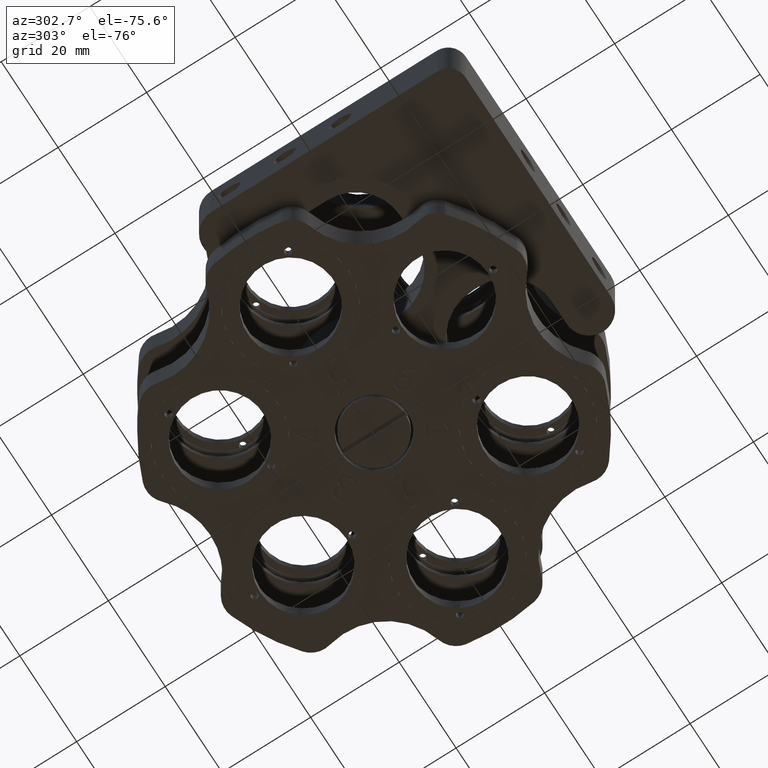
[diagram: clean part render]
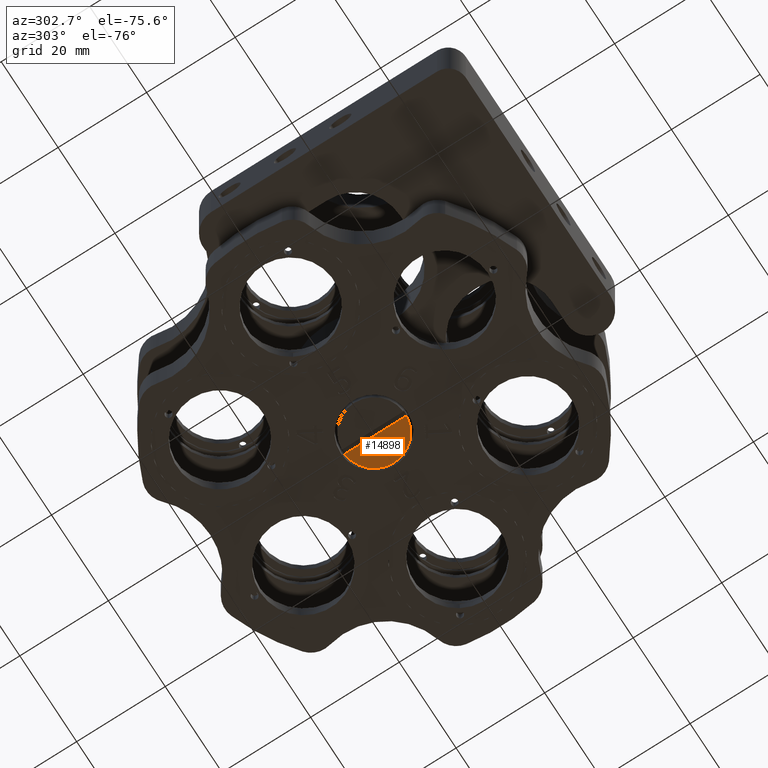
[diagram: same view with one face highlighted and labeled with its STEP entity id]
A machine part, auxiliary view. The second image highlights one B-rep face of the part: STEP entity #14898.
In plain terms, the highlighted planar face has unit normal (-0, 0, 1).
Its self-contained STEP definition (entity closure, byte-faithful):
#1602 = DIRECTION ( 'NONE',  ( -3.366104245613551800E-031, 2.449212707644744700E-016, 1.000000000000000000 ) ) ;
#2147 = DIRECTION ( 'NONE',  ( -1.665334536937734800E-016, 1.000000000000000000, -2.449212707644744700E-016 ) ) ;
#5618 = VERTEX_POINT ( 'NONE', #22318 ) ;
#5788 = CIRCLE ( 'NONE', #22400, 6.999999999999999100 ) ;
#7098 = ORIENTED_EDGE ( 'NONE', *, *, #14294, .F. ) ;
#7623 = PLANE ( 'NONE',  #18294 ) ;
#9433 = VERTEX_POINT ( 'NONE', #21787 ) ;
#9757 = CARTESIAN_POINT ( 'NONE',  ( 1.431146867680866500E-014, 1.621543611191045300E-014, -27.00000000000000000 ) ) ;
#10361 = CARTESIAN_POINT ( 'NONE',  ( 0.5000000000000143200, 1.629870283875734000E-014, -27.00000000000000000 ) ) ;
#11197 = VECTOR ( 'NONE', #2147, 1000.000000000000000 ) ;
#11572 = ORIENTED_EDGE ( 'NONE', *, *, #21740, .F. ) ;
#12790 = LINE ( 'NONE', #10361, #11197 ) ;
#14008 = DIRECTION ( 'NONE',  ( 1.000000000000000000, 1.665334536937736500E-016, 0.0000000000000000000 ) ) ;
#14294 = EDGE_CURVE ( 'NONE', #9433, #23499, #5788, .T. ) ;
#14898 = ADVANCED_FACE ( 'NONE', ( #21045 ), #7623, .F. ) ;
#17753 = EDGE_CURVE ( 'NONE', #9433, #5618, #12790, .T. ) ;
#18294 = AXIS2_PLACEMENT_3D ( 'NONE', #9757, #1602, #21858 ) ;
#18341 = EDGE_LOOP ( 'NONE', ( #7098, #22994, #11572 ) ) ;
#19767 = CARTESIAN_POINT ( 'NONE',  ( 1.431146867680866500E-014, 1.621543611191045300E-014, -27.00000000000000000 ) ) ;
#19852 = DIRECTION ( 'NONE',  ( -3.451266460341926600E-031, 2.449212707644744700E-016, 1.000000000000000000 ) ) ;
#20010 = DIRECTION ( 'NONE',  ( -3.451266460341926600E-031, 2.449212707644744700E-016, 1.000000000000000000 ) ) ;
#20905 = CARTESIAN_POINT ( 'NONE',  ( 7.000000000000014200, 1.866703527100784500E-014, -27.00000000000000000 ) ) ;
#21045 = FACE_OUTER_BOUND ( 'NONE', #18341, .T. ) ;
#21740 = EDGE_CURVE ( 'NONE', #23499, #5618, #24096, .T. ) ;
#21787 = CARTESIAN_POINT ( 'NONE',  ( 0.5000000000000155400, -6.982120021884454400, -27.00000000000000000 ) ) ;
#21858 = DIRECTION ( 'NONE',  ( 1.000000000000000000, 1.665334536937735300E-016, 2.958228394578794300E-031 ) ) ;
#21981 = DIRECTION ( 'NONE',  ( 1.000000000000000000, 1.665334536937736500E-016, 0.0000000000000000000 ) ) ;
#22043 = CARTESIAN_POINT ( 'NONE',  ( 1.431146867680866500E-014, 1.621543611191045300E-014, -27.00000000000000000 ) ) ;
#22318 = CARTESIAN_POINT ( 'NONE',  ( 0.5000000000000131000, 6.982120021884484600, -27.00000000000000000 ) ) ;
#22400 = AXIS2_PLACEMENT_3D ( 'NONE', #19767, #19852, #21981 ) ;
#22994 = ORIENTED_EDGE ( 'NONE', *, *, #17753, .T. ) ;
#23499 = VERTEX_POINT ( 'NONE', #20905 ) ;
#24096 = CIRCLE ( 'NONE', #26260, 6.999999999999999100 ) ;
#26260 = AXIS2_PLACEMENT_3D ( 'NONE', #22043, #20010, #14008 ) ;